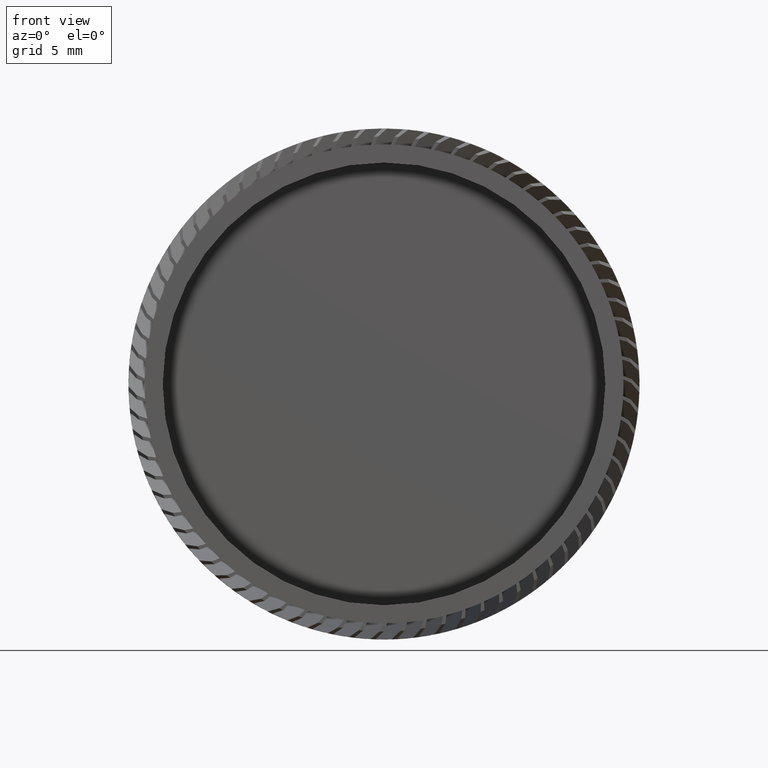
[diagram: clean part render]
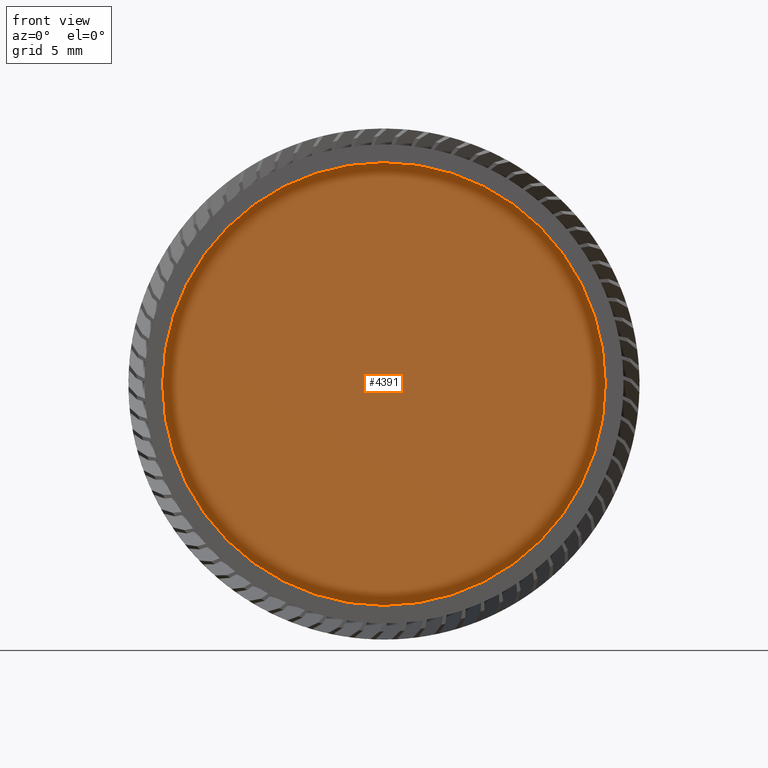
[diagram: same view with one face highlighted and labeled with its STEP entity id]
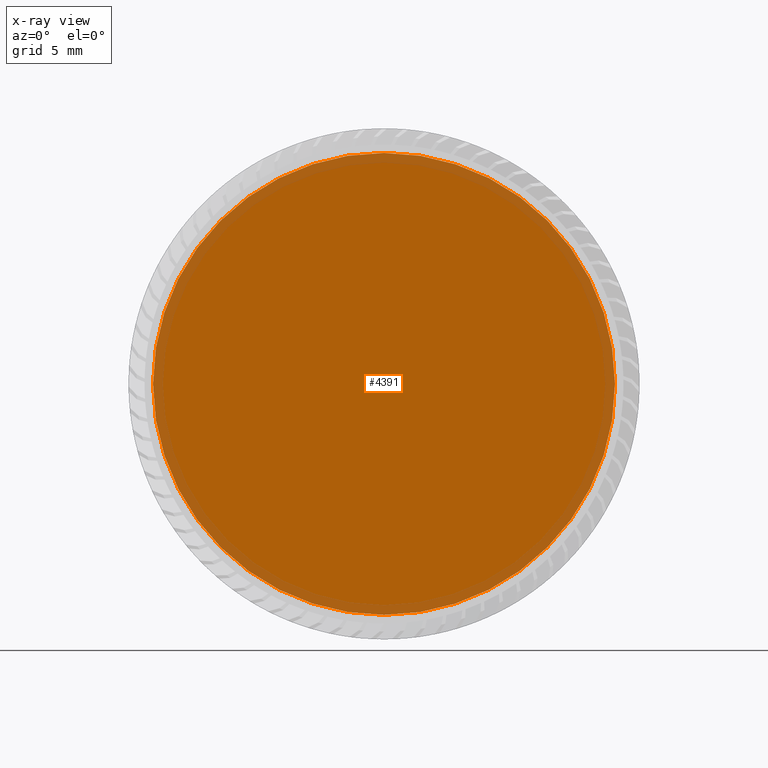
[diagram: x-ray of the same camera — body ghosted, the highlighted face saturated]
A machine part, front view. The second image highlights one B-rep face of the part: STEP entity #4391.
The next image is the same camera in x-ray: the body ghosted, the highlighted face saturated — about 8% of this face is hidden behind the body in this view.
In plain terms, the highlighted planar face has unit normal (-0, 1, 0).
Its self-contained STEP definition (entity closure, byte-faithful):
#814 = DIRECTION ( 'NONE',  ( 0.0000000000000000000, 0.0000000000000000000, 1.000000000000000000 ) ) ;
#1681 = FACE_OUTER_BOUND ( 'NONE', #8960, .T. ) ;
#1915 = PLANE ( 'NONE',  #14489 ) ;
#2614 = DIRECTION ( 'NONE',  ( 0.0000000000000000000, 0.0000000000000000000, 1.000000000000000000 ) ) ;
#2907 = CARTESIAN_POINT ( 'NONE',  ( 0.0000000000000000000, -7.830884482231917700, 0.0000000000000000000 ) ) ;
#3815 = DIRECTION ( 'NONE',  ( -0.0000000000000000000, 1.000000000000000000, -0.0000000000000000000 ) ) ;
#3912 = CIRCLE ( 'NONE', #4652, 14.35000000000000500 ) ;
#4391 = ADVANCED_FACE ( 'NONE', ( #1681 ), #1915, .F. ) ;
#4652 = AXIS2_PLACEMENT_3D ( 'NONE', #6337, #3815, #2614 ) ;
#6055 = CIRCLE ( 'NONE', #16239, 14.35000000000000500 ) ;
#6337 = CARTESIAN_POINT ( 'NONE',  ( 0.0000000000000000000, -7.830884482231917700, 0.0000000000000000000 ) ) ;
#8033 = CARTESIAN_POINT ( 'NONE',  ( 1.757368156776452400E-015, -7.830884482231917700, -14.35000000000000500 ) ) ;
#8505 = VERTEX_POINT ( 'NONE', #8033 ) ;
#8960 = EDGE_LOOP ( 'NONE', ( #14468, #11553 ) ) ;
#9284 = EDGE_CURVE ( 'NONE', #10686, #8505, #3912, .T. ) ;
#9386 = DIRECTION ( 'NONE',  ( -0.0000000000000000000, 1.000000000000000000, -0.0000000000000000000 ) ) ;
#10686 = VERTEX_POINT ( 'NONE', #12411 ) ;
#10886 = CARTESIAN_POINT ( 'NONE',  ( 14.35000000000000500, -7.830884482231917700, 0.0000000000000000000 ) ) ;
#11553 = ORIENTED_EDGE ( 'NONE', *, *, #14181, .F. ) ;
#12411 = CARTESIAN_POINT ( 'NONE',  ( 0.0000000000000000000, -7.830884482231917700, 14.35000000000000500 ) ) ;
#12862 = DIRECTION ( 'NONE',  ( 0.0000000000000000000, 0.0000000000000000000, 1.000000000000000000 ) ) ;
#14181 = EDGE_CURVE ( 'NONE', #8505, #10686, #6055, .T. ) ;
#14468 = ORIENTED_EDGE ( 'NONE', *, *, #9284, .F. ) ;
#14489 = AXIS2_PLACEMENT_3D ( 'NONE', #10886, #14621, #814 ) ;
#14621 = DIRECTION ( 'NONE',  ( -0.0000000000000000000, 1.000000000000000000, 0.0000000000000000000 ) ) ;
#16239 = AXIS2_PLACEMENT_3D ( 'NONE', #2907, #9386, #12862 ) ;